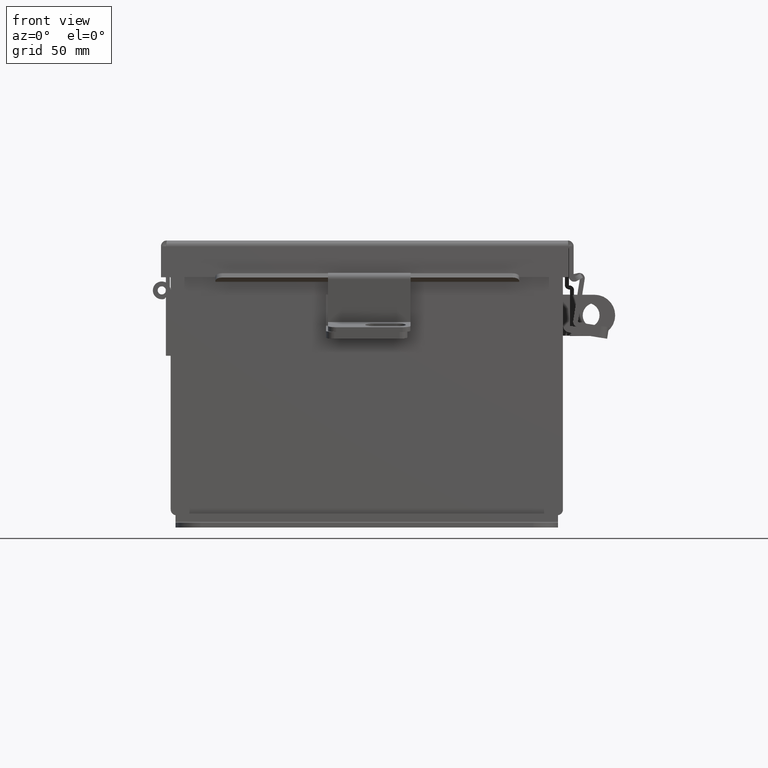
[diagram: clean part render]
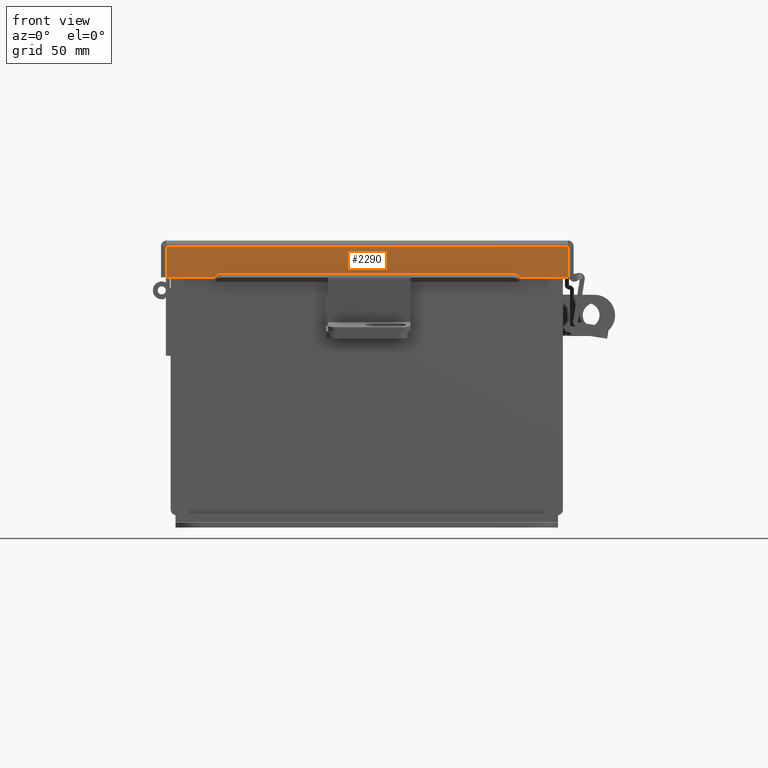
[diagram: same view with one face highlighted and labeled with its STEP entity id]
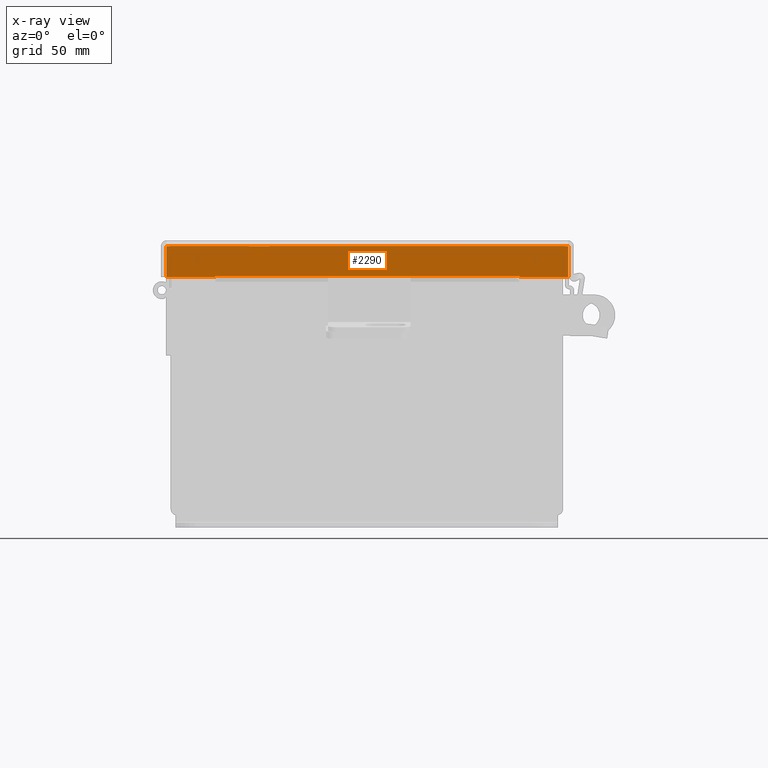
[diagram: x-ray of the same camera — body ghosted, the highlighted face saturated]
A machine part, front view. The second image highlights one B-rep face of the part: STEP entity #2290.
The next image is the same camera in x-ray: the body ghosted, the highlighted face saturated — about 0% of this face is hidden behind the body in this view.
In plain terms, the highlighted planar face has unit normal (0, 1, -0).
Its self-contained STEP definition (entity closure, byte-faithful):
#110 = CARTESIAN_POINT ( 'NONE',  ( -3.074478932188136100, -3.156250000000001800, 0.4872999999999997900 ) ) ;
#156 = VERTEX_POINT ( 'NONE', #5975 ) ;
#283 = ORIENTED_EDGE ( 'NONE', *, *, #1963, .T. ) ;
#517 = VECTOR ( 'NONE', #3654, 39.37007874015748100 ) ;
#720 = LINE ( 'NONE', #3574, #9158 ) ;
#829 = LINE ( 'NONE', #5206, #3399 ) ;
#926 = EDGE_CURVE ( 'NONE', #156, #4730, #7932, .T. ) ;
#1963 = EDGE_CURVE ( 'NONE', #3768, #2846, #13387, .T. ) ;
#2290 = ADVANCED_FACE ( 'NONE', ( #12521 ), #3331, .F. ) ;
#2529 = EDGE_CURVE ( 'NONE', #4685, #3354, #5675, .T. ) ;
#2750 = ORIENTED_EDGE ( 'NONE', *, *, #10790, .F. ) ;
#2846 = VERTEX_POINT ( 'NONE', #110 ) ;
#3331 = PLANE ( 'NONE',  #9517 ) ;
#3354 = VERTEX_POINT ( 'NONE', #11099 ) ;
#3357 = CARTESIAN_POINT ( 'NONE',  ( 5.272196147772659500E-018, -3.156250000000001800, 0.4872999999999997900 ) ) ;
#3399 = VECTOR ( 'NONE', #10660, 39.37007874015748100 ) ;
#3574 = CARTESIAN_POINT ( 'NONE',  ( -3.074478932188136100, -3.156250000000000000, -2.512649847650985800E-016 ) ) ;
#3654 = DIRECTION ( 'NONE',  ( 0.0000000000000000000, 0.0000000000000000000, 1.000000000000000000 ) ) ;
#3718 = ORIENTED_EDGE ( 'NONE', *, *, #926, .T. ) ;
#3768 = VERTEX_POINT ( 'NONE', #9856 ) ;
#3979 = CARTESIAN_POINT ( 'NONE',  ( -3.074478932188136100, -3.156250000000000000, 0.01299999999999985900 ) ) ;
#4200 = VECTOR ( 'NONE', #4977, 39.37007874015748100 ) ;
#4387 = EDGE_LOOP ( 'NONE', ( #13591, #283, #13973, #4949, #3718, #5792, #7981, #2750 ) ) ;
#4439 = DIRECTION ( 'NONE',  ( 0.0000000000000000000, -3.363654414526077700E-015, 1.000000000000000000 ) ) ;
#4473 = DIRECTION ( 'NONE',  ( -1.000000000000000000, 0.0000000000000000000, 1.081919997490798000E-017 ) ) ;
#4633 = VECTOR ( 'NONE', #4473, 39.37007874015748100 ) ;
#4685 = VERTEX_POINT ( 'NONE', #8825 ) ;
#4730 = VERTEX_POINT ( 'NONE', #8928 ) ;
#4949 = ORIENTED_EDGE ( 'NONE', *, *, #5436, .F. ) ;
#4953 = VERTEX_POINT ( 'NONE', #6959 ) ;
#4977 = DIRECTION ( 'NONE',  ( -1.000000000000000000, 0.0000000000000000000, 1.081919997490798000E-017 ) ) ;
#5075 = VECTOR ( 'NONE', #11004, 39.37007874015748100 ) ;
#5206 = CARTESIAN_POINT ( 'NONE',  ( -3.156249999999999600, -3.156250000000000000, 0.01299999999999986400 ) ) ;
#5436 = EDGE_CURVE ( 'NONE', #156, #13004, #829, .T. ) ;
#5675 = LINE ( 'NONE', #6942, #517 ) ;
#5792 = ORIENTED_EDGE ( 'NONE', *, *, #9224, .T. ) ;
#5975 = CARTESIAN_POINT ( 'NONE',  ( 3.074478932188135200, -3.156250000000000000, 0.01299999999999986400 ) ) ;
#6549 = CARTESIAN_POINT ( 'NONE',  ( 3.074478932188135200, -3.156250000000000000, -1.087734790185951700E-014 ) ) ;
#6942 = CARTESIAN_POINT ( 'NONE',  ( 2.324478932188135200, -3.156250000000001800, 0.4717115427318804800 ) ) ;
#6959 = CARTESIAN_POINT ( 'NONE',  ( -2.324478932188136100, -3.156250000000001800, 0.4717115427318804800 ) ) ;
#7431 = VECTOR ( 'NONE', #12743, 39.37007874015748100 ) ;
#7469 = LINE ( 'NONE', #13755, #4200 ) ;
#7578 = VECTOR ( 'NONE', #13119, 39.37007874015748100 ) ;
#7932 = LINE ( 'NONE', #6549, #7578 ) ;
#7949 = EDGE_CURVE ( 'NONE', #3768, #4953, #13827, .T. ) ;
#7981 = ORIENTED_EDGE ( 'NONE', *, *, #2529, .F. ) ;
#8762 = CARTESIAN_POINT ( 'NONE',  ( -1.148624070462876500E-031, -3.156250000000000000, -1.087734790185951700E-014 ) ) ;
#8825 = CARTESIAN_POINT ( 'NONE',  ( 2.324478932188135200, -3.156250000000001800, 0.4717115427318804800 ) ) ;
#8928 = CARTESIAN_POINT ( 'NONE',  ( 3.074478932188135200, -3.156250000000001800, 0.4872999999999997300 ) ) ;
#9158 = VECTOR ( 'NONE', #12387, 39.37007874015748100 ) ;
#9224 = EDGE_CURVE ( 'NONE', #4730, #3354, #7469, .T. ) ;
#9517 = AXIS2_PLACEMENT_3D ( 'NONE', #8762, #11021, #4439 ) ;
#9856 = CARTESIAN_POINT ( 'NONE',  ( -2.324478932188136100, -3.156250000000001800, 0.4872999999999997900 ) ) ;
#9909 = CARTESIAN_POINT ( 'NONE',  ( -2.324478932188136100, -3.156250000000002200, 0.4872999999999999000 ) ) ;
#10528 = CARTESIAN_POINT ( 'NONE',  ( -2.324478932188136100, -3.156250000000001800, 0.4717115427318804800 ) ) ;
#10658 = EDGE_CURVE ( 'NONE', #13004, #2846, #720, .T. ) ;
#10660 = DIRECTION ( 'NONE',  ( -1.000000000000000000, 3.639204975723965200E-032, 1.189815042988946700E-046 ) ) ;
#10790 = EDGE_CURVE ( 'NONE', #4953, #4685, #13604, .T. ) ;
#11004 = DIRECTION ( 'NONE',  ( 0.0000000000000000000, 3.504962610060558100E-014, -1.000000000000000000 ) ) ;
#11021 = DIRECTION ( 'NONE',  ( 3.639204975723965200E-032, 1.000000000000000000, 3.363654414526077700E-015 ) ) ;
#11099 = CARTESIAN_POINT ( 'NONE',  ( 2.324478932188135200, -3.156250000000001800, 0.4872999999999997900 ) ) ;
#12387 = DIRECTION ( 'NONE',  ( -0.0000000000000000000, -3.363654414526077700E-015, 1.000000000000000000 ) ) ;
#12521 = FACE_OUTER_BOUND ( 'NONE', #4387, .T. ) ;
#12743 = DIRECTION ( 'NONE',  ( 1.000000000000000000, 0.0000000000000000000, 0.0000000000000000000 ) ) ;
#13004 = VERTEX_POINT ( 'NONE', #3979 ) ;
#13119 = DIRECTION ( 'NONE',  ( 0.0000000000000000000, -3.363654414526077700E-015, 1.000000000000000000 ) ) ;
#13387 = LINE ( 'NONE', #3357, #4633 ) ;
#13591 = ORIENTED_EDGE ( 'NONE', *, *, #7949, .F. ) ;
#13604 = LINE ( 'NONE', #10528, #7431 ) ;
#13755 = CARTESIAN_POINT ( 'NONE',  ( 5.272196147772659500E-018, -3.156250000000001800, 0.4872999999999997900 ) ) ;
#13827 = LINE ( 'NONE', #9909, #5075 ) ;
#13973 = ORIENTED_EDGE ( 'NONE', *, *, #10658, .F. ) ;